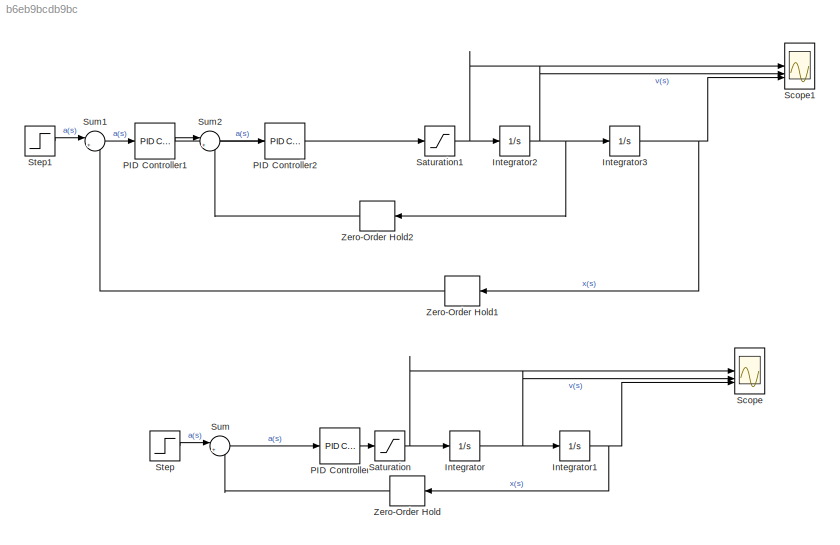
MODEL slx_b6eb9bcdb9bc
KIND model
CONFIG AbsTol = auto
CONFIG EnableMultiTasking = off
CONFIG FixedStep = auto
CONFIG MaxStep = auto
CONFIG MinStep = auto
CONFIG RelTol = 1e-3
CONFIG SampleTimeConstraint = Unconstrained
CONFIG SolverName = VariableStepAuto
CONFIG StartTime = 0.0
CONFIG StopTime = 10
BLOCK [Integrator] Integrator
BLOCK [Integrator] Integrator1
BLOCK [Integrator] Integrator2
BLOCK [Integrator] Integrator3
BLOCK [Reference] PID Controller  REF=slpidlib/PID Controller
  LibrarySourceBlock = simulink/Continuous/PID Controller
  SourceBlock = slpidlib/PID Controller
  SourceType = PID 1dof
BLOCK [Reference] PID Controller1  REF=slpidlib/PID Controller
  LibrarySourceBlock = simulink/Continuous/PID Controller
  SourceBlock = slpidlib/PID Controller
  SourceType = PID 1dof
BLOCK [Reference] PID Controller2  REF=slpidlib/PID Controller
  LibrarySourceBlock = simulink/Continuous/PID Controller
  SourceBlock = slpidlib/PID Controller
  SourceType = PID 1dof
BLOCK [Saturate] Saturation
  LowerLimit = -1500
  UpperLimit = 1500
BLOCK [Saturate] Saturation1
  LowerLimit = -1500
  UpperLimit = 1500
BLOCK [Scope] Scope
  Floating = off
  NumInputPorts = 3
  ScopeSpecificationString = Simulink.scopes.TimeScopeBlockCfg('CurrentConfiguration', extmgr.ConfigurationSet(extmgr.Configuration('Core','General UI',true),extmgr.Configuration('Core','Source UI',true),extmgr.Configuration('Sources','WiredSimulink',true),extmgr.Configuration('Visuals','Time Domain',true,'SerializedDisplays',{struct('MinYLimReal','-274.45883','MaxYLimReal','275.32766','YLabelReal','','MinYLimMag',' 0.00000',...<+2728ch>
BLOCK [Scope] Scope1
  Floating = off
  NumInputPorts = 3
  ScopeSpecificationString = Simulink.scopes.TimeScopeBlockCfg('CurrentConfiguration', extmgr.ConfigurationSet(extmgr.Configuration('Core','General UI',true),extmgr.Configuration('Core','Source UI',true),extmgr.Configuration('Sources','WiredSimulink',true,'DataLoggingVariableName','ScopeData1'),extmgr.Configuration('Visuals','Time Domain',true,'SerializedDisplays',{struct('MinYLimReal','-1875.00000','MaxYLimReal','1875.00000'...<+2800ch>
BLOCK [Step] Step
  After = 200
  SampleTime = 0
BLOCK [Step] Step1
  After = 200
  SampleTime = 0
BLOCK [Sum] Sum
  Inputs = |+-
BLOCK [Sum] Sum1
  Inputs = |+-
BLOCK [Sum] Sum2
  Inputs = |+-
BLOCK [ZeroOrderHold] Zero-Order Hold
  SampleTime = 0.05
BLOCK [ZeroOrderHold] Zero-Order Hold1
  SampleTime = 0.05
BLOCK [ZeroOrderHold] Zero-Order Hold2
  SampleTime = 0.05
NET Integrator1:1 -> Scope:3, Zero-Order Hold:1
NET Integrator2:1 -> Integrator3:1, Scope1:2, Zero-Order Hold2:1
NET Integrator3:1 -> Scope1:3, Zero-Order Hold1:1
NET Integrator:1 -> Integrator1:1, Scope:2
LINE PID Controller1:1 -> Sum2:1
LINE PID Controller2:1 -> Saturation1:1
LINE PID Controller:1 -> Saturation:1
NET Saturation1:1 -> Integrator2:1, Scope1:1
NET Saturation:1 -> Integrator:1, Scope:1
LINE Step1:1 -> Sum1:1
LINE Step:1 -> Sum:1
LINE Sum1:1 -> PID Controller1:1
LINE Sum2:1 -> PID Controller2:1
LINE Sum:1 -> PID Controller:1
LINE Zero-Order Hold1:1 -> Sum1:2
LINE Zero-Order Hold2:1 -> Sum2:2
LINE Zero-Order Hold:1 -> Sum:2
note: NET lines group one-source signal fan-out (src -> all destinations, sorted); 1:1 wires keep LINE
